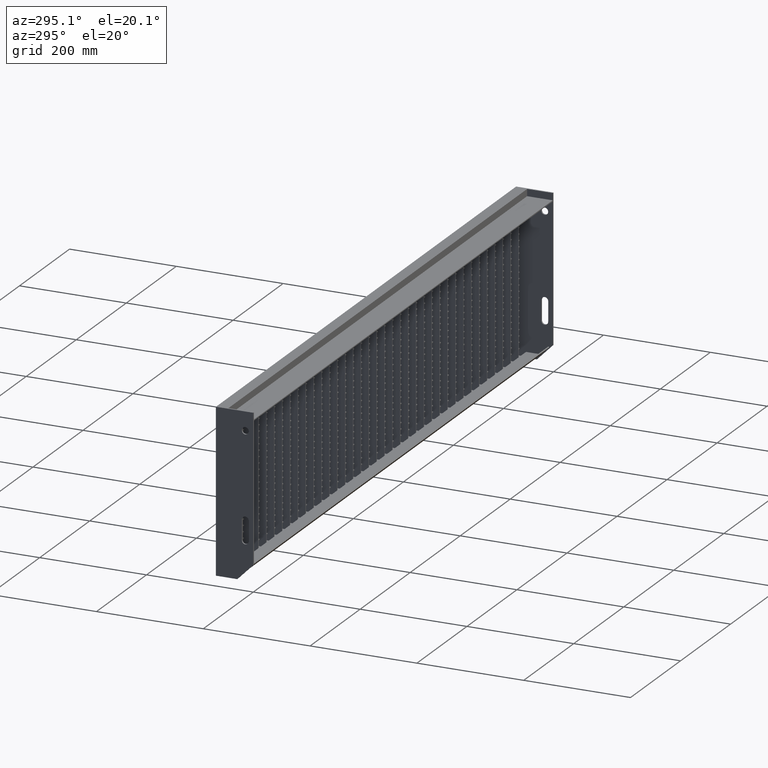
[diagram: clean part render]
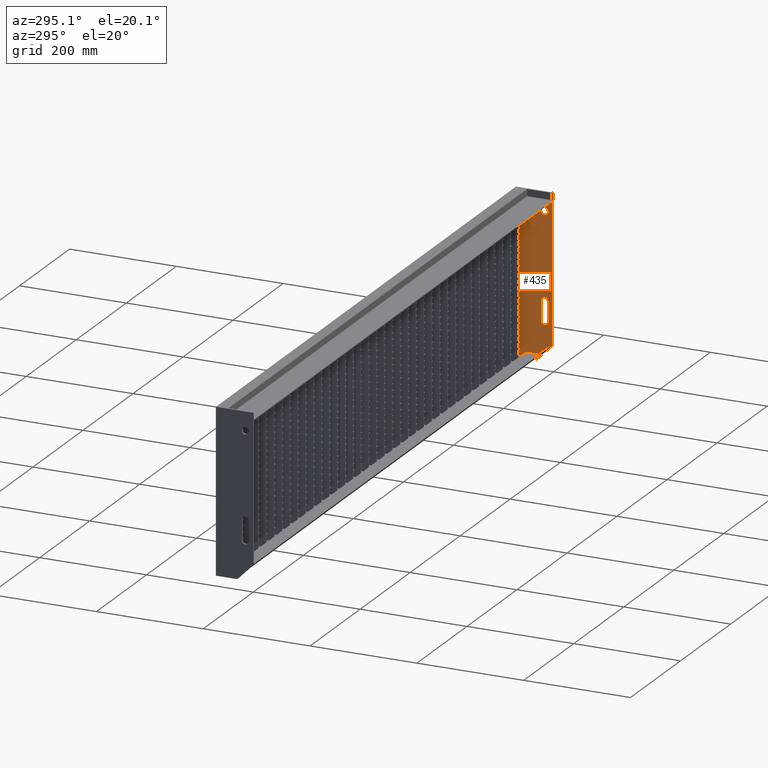
[diagram: same view with one face highlighted and labeled with its STEP entity id]
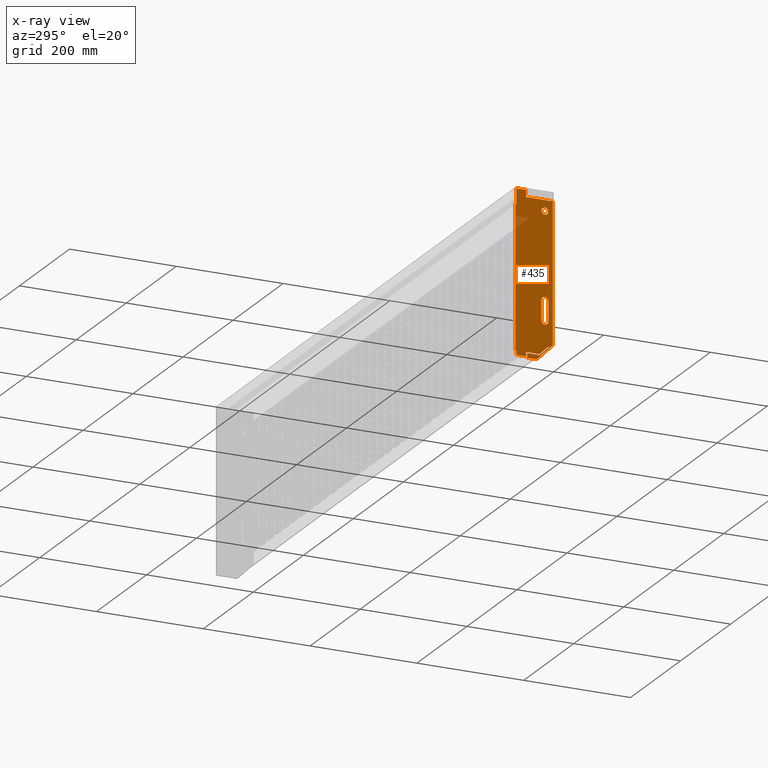
[diagram: x-ray of the same camera — body ghosted, the highlighted face saturated]
A machine part, auxiliary view. The second image highlights one B-rep face of the part: STEP entity #435.
The next image is the same camera in x-ray: the body ghosted, the highlighted face saturated — about 2% of this face is hidden behind the body in this view.
In plain terms, the highlighted planar face has unit normal (-1, 0, 0).
Its self-contained STEP definition (entity closure, byte-faithful):
#58 = CARTESIAN_POINT ( 'NONE',  ( 597.0000000000000000, 24.44974746830581200, -294.5000000000000000 ) ) ;
#150 = CARTESIAN_POINT ( 'NONE',  ( 597.0000000000000000, 21.50000000000020600, -233.4999999999998900 ) ) ;
#209 = EDGE_CURVE ( 'NONE', #35170, #35150, #3165, .T. ) ;
#391 = CARTESIAN_POINT ( 'NONE',  ( 597.0000000000000000, 15.00000000000019900, -35.00000000000000000 ) ) ;
#423 = ORIENTED_EDGE ( 'NONE', *, *, #9139, .T. ) ;
#435 = ADVANCED_FACE ( 'NONE', ( #1699, #31918, #17489 ), #25614, .T. ) ;
#538 = DIRECTION ( 'NONE',  ( 0.0000000000000000000, 0.0000000000000000000, -1.000000000000000000 ) ) ;
#611 = DIRECTION ( 'NONE',  ( 0.0000000000000000000, 0.0000000000000000000, 1.000000000000000000 ) ) ;
#665 = ORIENTED_EDGE ( 'NONE', *, *, #25657, .F. ) ;
#1404 = ORIENTED_EDGE ( 'NONE', *, *, #18287, .F. ) ;
#1419 = VERTEX_POINT ( 'NONE', #12991 ) ;
#1699 = FACE_BOUND ( 'NONE', #3606, .T. ) ;
#2015 = DIRECTION ( 'NONE',  ( 0.0000000000000000000, 0.7071067811865696700, 0.7071067811865253700 ) ) ;
#2081 = AXIS2_PLACEMENT_3D ( 'NONE', #24496, #3033, #8516 ) ;
#2127 = EDGE_CURVE ( 'NONE', #18171, #17650, #39234, .T. ) ;
#3018 = VECTOR ( 'NONE', #538, 1000.000000000000000 ) ;
#3033 = DIRECTION ( 'NONE',  ( 1.000000000000000000, 0.0000000000000000000, 0.0000000000000000000 ) ) ;
#3147 = EDGE_CURVE ( 'NONE', #30969, #23786, #28148, .T. ) ;
#3165 = CIRCLE ( 'NONE', #12286, 6.499999999999999100 ) ;
#3585 = DIRECTION ( 'NONE',  ( 1.000000000000000000, 0.0000000000000000000, 0.0000000000000000000 ) ) ;
#3606 = EDGE_LOOP ( 'NONE', ( #34183, #423, #6688, #4475, #19436 ) ) ;
#3623 = VERTEX_POINT ( 'NONE', #37431 ) ;
#3877 = DIRECTION ( 'NONE',  ( 1.000000000000000000, 0.0000000000000000000, 0.0000000000000000000 ) ) ;
#4101 = VECTOR ( 'NONE', #27274, 1000.000000000000000 ) ;
#4123 = CARTESIAN_POINT ( 'NONE',  ( 597.0000000000000000, 0.0000000000000000000, 0.0000000000000000000 ) ) ;
#4475 = ORIENTED_EDGE ( 'NONE', *, *, #6956, .T. ) ;
#5083 = ORIENTED_EDGE ( 'NONE', *, *, #22848, .F. ) ;
#5122 = ORIENTED_EDGE ( 'NONE', *, *, #37711, .F. ) ;
#5534 = VERTEX_POINT ( 'NONE', #7834 ) ;
#5562 = VERTEX_POINT ( 'NONE', #7715 ) ;
#5940 = VECTOR ( 'NONE', #611, 1000.000000000000000 ) ;
#6628 = EDGE_CURVE ( 'NONE', #32709, #5562, #32757, .T. ) ;
#6688 = ORIENTED_EDGE ( 'NONE', *, *, #37517, .T. ) ;
#6815 = VECTOR ( 'NONE', #25557, 1000.000000000000000 ) ;
#6918 = DIRECTION ( 'NONE',  ( 0.0000000000000000000, 1.000000000000000000, 0.0000000000000000000 ) ) ;
#6956 = EDGE_CURVE ( 'NONE', #17648, #26237, #22622, .T. ) ;
#6964 = LINE ( 'NONE', #33273, #4101 ) ;
#7128 = CARTESIAN_POINT ( 'NONE',  ( 597.0000000000000000, 6.650757595082542800, -279.5294372515228400 ) ) ;
#7153 = EDGE_CURVE ( 'NONE', #32040, #24685, #28875, .T. ) ;
#7180 = EDGE_CURVE ( 'NONE', #25854, #16970, #17810, .T. ) ;
#7631 = CARTESIAN_POINT ( 'NONE',  ( 597.0000000000000000, 6.650757595082542800, -279.5294372515228400 ) ) ;
#7715 = CARTESIAN_POINT ( 'NONE',  ( 597.0000000000000000, 68.00000000000000000, -30.00000000000000000 ) ) ;
#7834 = CARTESIAN_POINT ( 'NONE',  ( 597.0000000000000000, 21.50000000000021700, -196.4999999999999400 ) ) ;
#8047 = EDGE_CURVE ( 'NONE', #5534, #1419, #17755, .T. ) ;
#8082 = CARTESIAN_POINT ( 'NONE',  ( 597.0000000000000000, 68.00000000000000000, -2.000000000000001800 ) ) ;
#8177 = ORIENTED_EDGE ( 'NONE', *, *, #16386, .F. ) ;
#8368 = EDGE_CURVE ( 'NONE', #35150, #35170, #26585, .T. ) ;
#8516 = DIRECTION ( 'NONE',  ( 0.0000000000000000000, 0.0000000000000000000, -1.000000000000000000 ) ) ;
#8517 = ORIENTED_EDGE ( 'NONE', *, *, #3147, .F. ) ;
#8591 = CARTESIAN_POINT ( 'NONE',  ( 597.0000000000000000, 15.00000000000019900, -28.50000000000000400 ) ) ;
#9139 = EDGE_CURVE ( 'NONE', #1419, #3623, #20999, .T. ) ;
#9176 = DIRECTION ( 'NONE',  ( 0.0000000000000000000, 3.750753461571482800E-016, 1.000000000000000000 ) ) ;
#9543 = DIRECTION ( 'NONE',  ( 0.0000000000000000000, 0.0000000000000000000, -1.000000000000000000 ) ) ;
#9546 = CARTESIAN_POINT ( 'NONE',  ( 597.0000000000000000, 50.00000000000022700, -303.0000000000000000 ) ) ;
#9574 = VECTOR ( 'NONE', #16710, 1000.000000000000000 ) ;
#9943 = ORIENTED_EDGE ( 'NONE', *, *, #7153, .F. ) ;
#9981 = CARTESIAN_POINT ( 'NONE',  ( 597.0000000000000000, 2.601319824573162500E-016, -14.99999999999999800 ) ) ;
#10004 = CARTESIAN_POINT ( 'NONE',  ( 597.0000000000000000, 30.00000000000022700, -305.0000000000000000 ) ) ;
#10430 = AXIS2_PLACEMENT_3D ( 'NONE', #28729, #22262, #22531 ) ;
#10546 = VERTEX_POINT ( 'NONE', #16912 ) ;
#10833 = DIRECTION ( 'NONE',  ( -0.0000000000000000000, -0.0000000000000000000, 1.000000000000000000 ) ) ;
#11283 = EDGE_CURVE ( 'NONE', #15527, #32709, #18420, .T. ) ;
#11391 = CARTESIAN_POINT ( 'NONE',  ( 597.0000000000000000, 68.00000000000022700, -303.0000000000000000 ) ) ;
#11417 = ORIENTED_EDGE ( 'NONE', *, *, #6628, .F. ) ;
#11569 = CARTESIAN_POINT ( 'NONE',  ( 597.0000000000000000, 23.62132034355967400, -296.5000000000000000 ) ) ;
#11855 = CARTESIAN_POINT ( 'NONE',  ( 597.0000000000000000, 21.50000000000020300, -233.4999999999998900 ) ) ;
#12286 = AXIS2_PLACEMENT_3D ( 'NONE', #391, #3585, #24929 ) ;
#12631 = DIRECTION ( 'NONE',  ( 1.000000000000000000, 0.0000000000000000000, 0.0000000000000000000 ) ) ;
#12736 = ORIENTED_EDGE ( 'NONE', *, *, #16166, .F. ) ;
#12902 = VERTEX_POINT ( 'NONE', #11391 ) ;
#12991 = CARTESIAN_POINT ( 'NONE',  ( 597.0000000000000000, 8.500000000000183000, -196.4999999999999400 ) ) ;
#13075 = EDGE_CURVE ( 'NONE', #21680, #22401, #14474, .T. ) ;
#13146 = EDGE_CURVE ( 'NONE', #22401, #30969, #38022, .T. ) ;
#13863 = LINE ( 'NONE', #23146, #9574 ) ;
#14243 = CARTESIAN_POINT ( 'NONE',  ( 597.0000000000000000, 8.500000000000183000, -196.4999999999999400 ) ) ;
#14306 = CARTESIAN_POINT ( 'NONE',  ( 597.0000000000000000, 48.00000000000022000, -305.0000000000000000 ) ) ;
#14418 = ORIENTED_EDGE ( 'NONE', *, *, #11283, .F. ) ;
#14423 = CARTESIAN_POINT ( 'NONE',  ( 597.0000000000000000, 50.00000000000011400, -15.00000000000000000 ) ) ;
#14474 = LINE ( 'NONE', #28176, #3018 ) ;
#15434 = DIRECTION ( 'NONE',  ( 0.0000000000000000000, 1.000000000000000000, 0.0000000000000000000 ) ) ;
#15462 = CARTESIAN_POINT ( 'NONE',  ( 597.0000000000000000, 50.00000000000022700, -303.0000000000000000 ) ) ;
#15472 = CARTESIAN_POINT ( 'NONE',  ( 597.0000000000000000, 8.064971157455666200, -278.1152236891498400 ) ) ;
#15527 = VERTEX_POINT ( 'NONE', #21450 ) ;
#15790 = LINE ( 'NONE', #11855, #34055 ) ;
#15854 = CARTESIAN_POINT ( 'NONE',  ( 597.0000000000000000, 68.00000000000022700, -303.0000000000000000 ) ) ;
#16104 = DIRECTION ( 'NONE',  ( 0.0000000000000000000, 0.0000000000000000000, -1.000000000000000000 ) ) ;
#16132 = VECTOR ( 'NONE', #21784, 1000.000000000000100 ) ;
#16164 = DIRECTION ( 'NONE',  ( -0.0000000000000000000, 0.7071067811865491300, -0.7071067811865459100 ) ) ;
#16166 = EDGE_CURVE ( 'NONE', #16970, #18171, #20453, .T. ) ;
#16386 = EDGE_CURVE ( 'NONE', #37374, #25854, #36278, .T. ) ;
#16417 = CARTESIAN_POINT ( 'NONE',  ( 597.0000000000000000, 50.00000000000022700, -294.5000000000000000 ) ) ;
#16589 = LINE ( 'NONE', #9546, #33874 ) ;
#16646 = DIRECTION ( 'NONE',  ( 0.0000000000000000000, -1.000000000000000000, 0.0000000000000000000 ) ) ;
#16710 = DIRECTION ( 'NONE',  ( 0.0000000000000000000, 0.0000000000000000000, 1.000000000000000000 ) ) ;
#16912 = CARTESIAN_POINT ( 'NONE',  ( 597.0000000000000000, 30.00000000000022700, -305.0000000000000000 ) ) ;
#16970 = VERTEX_POINT ( 'NONE', #21313 ) ;
#16994 = LINE ( 'NONE', #15854, #5940 ) ;
#17346 = DIRECTION ( 'NONE',  ( 0.0000000000000000000, 0.0000000000000000000, 1.000000000000000000 ) ) ;
#17489 = FACE_OUTER_BOUND ( 'NONE', #28932, .T. ) ;
#17505 = AXIS2_PLACEMENT_3D ( 'NONE', #31453, #12631, #16104 ) ;
#17648 = VERTEX_POINT ( 'NONE', #27874 ) ;
#17650 = VERTEX_POINT ( 'NONE', #16417 ) ;
#17755 = CIRCLE ( 'NONE', #24705, 6.500000000000005300 ) ;
#17810 = LINE ( 'NONE', #7631, #36040 ) ;
#18171 = VERTEX_POINT ( 'NONE', #58 ) ;
#18287 = EDGE_CURVE ( 'NONE', #17650, #20791, #35688, .T. ) ;
#18420 = LINE ( 'NONE', #19689, #39560 ) ;
#18423 = VECTOR ( 'NONE', #9543, 1000.000000000000000 ) ;
#19436 = ORIENTED_EDGE ( 'NONE', *, *, #29977, .T. ) ;
#19472 = ORIENTED_EDGE ( 'NONE', *, *, #8368, .T. ) ;
#19676 = DIRECTION ( 'NONE',  ( 0.0000000000000000000, -1.000000000000000000, 3.469446951953606200E-017 ) ) ;
#19689 = CARTESIAN_POINT ( 'NONE',  ( 597.0000000000000000, 70.00000000000022700, 0.0000000000000000000 ) ) ;
#19933 = VECTOR ( 'NONE', #34177, 1000.000000000000000 ) ;
#20185 = ORIENTED_EDGE ( 'NONE', *, *, #13075, .F. ) ;
#20228 = DIRECTION ( 'NONE',  ( 0.0000000000000000000, 0.0000000000000000000, 1.000000000000000000 ) ) ;
#20388 = ORIENTED_EDGE ( 'NONE', *, *, #24508, .F. ) ;
#20453 = LINE ( 'NONE', #15472, #16132 ) ;
#20589 = CIRCLE ( 'NONE', #17505, 6.500000000000005300 ) ;
#20726 = VECTOR ( 'NONE', #19676, 1000.000000000000000 ) ;
#20791 = VERTEX_POINT ( 'NONE', #15462 ) ;
#20999 = LINE ( 'NONE', #14243, #29164 ) ;
#21313 = CARTESIAN_POINT ( 'NONE',  ( 597.0000000000000000, 8.064971157455666200, -278.1152236891498400 ) ) ;
#21325 = CARTESIAN_POINT ( 'NONE',  ( 597.0000000000000000, 15.00000000000019900, -41.50000000000000000 ) ) ;
#21332 = LINE ( 'NONE', #34757, #6815 ) ;
#21450 = CARTESIAN_POINT ( 'NONE',  ( 597.0000000000000000, 70.00000000000022700, -294.5000000000000000 ) ) ;
#21456 = LINE ( 'NONE', #10004, #32986 ) ;
#21680 = VERTEX_POINT ( 'NONE', #21901 ) ;
#21784 = DIRECTION ( 'NONE',  ( 0.0000000000000000000, 0.7071067811865470200, -0.7071067811865479100 ) ) ;
#21862 = ORIENTED_EDGE ( 'NONE', *, *, #7180, .F. ) ;
#21866 = CARTESIAN_POINT ( 'NONE',  ( 597.0000000000000000, 2.239058707984771800E-013, -275.0000000000001100 ) ) ;
#21901 = CARTESIAN_POINT ( 'NONE',  ( 597.0000000000000000, 50.00000000000011400, -1.999999999999997800 ) ) ;
#22066 = CARTESIAN_POINT ( 'NONE',  ( 597.0000000000000000, 24.44974746830581200, -294.5000000000000000 ) ) ;
#22262 = DIRECTION ( 'NONE',  ( 1.000000000000000000, 0.0000000000000000000, 0.0000000000000000000 ) ) ;
#22401 = VERTEX_POINT ( 'NONE', #26051 ) ;
#22531 = DIRECTION ( 'NONE',  ( 0.0000000000000000000, 0.0000000000000000000, -1.000000000000000000 ) ) ;
#22622 = CIRCLE ( 'NONE', #10430, 6.500000000000005300 ) ;
#22737 = CARTESIAN_POINT ( 'NONE',  ( 597.0000000000000000, 68.00000000000022700, -294.5000000000000000 ) ) ;
#22848 = EDGE_CURVE ( 'NONE', #23786, #10546, #21456, .T. ) ;
#22908 = VECTOR ( 'NONE', #6918, 1000.000000000000000 ) ;
#23001 = DIRECTION ( 'NONE',  ( -1.000000000000000000, 0.0000000000000000000, 0.0000000000000000000 ) ) ;
#23146 = CARTESIAN_POINT ( 'NONE',  ( 597.0000000000000000, 68.00000000000000000, -30.00000000000000000 ) ) ;
#23786 = VERTEX_POINT ( 'NONE', #21866 ) ;
#24496 = CARTESIAN_POINT ( 'NONE',  ( 597.0000000000000000, 15.00000000000019900, -35.00000000000000000 ) ) ;
#24508 = EDGE_CURVE ( 'NONE', #32661, #21680, #29659, .T. ) ;
#24667 = AXIS2_PLACEMENT_3D ( 'NONE', #4123, #23001, #17346 ) ;
#24685 = VERTEX_POINT ( 'NONE', #25435 ) ;
#24705 = AXIS2_PLACEMENT_3D ( 'NONE', #37376, #3877, #31383 ) ;
#24929 = DIRECTION ( 'NONE',  ( 0.0000000000000000000, 0.0000000000000000000, -1.000000000000000000 ) ) ;
#25435 = CARTESIAN_POINT ( 'NONE',  ( 597.0000000000000000, 48.00000000000022000, -296.5000000000000000 ) ) ;
#25557 = DIRECTION ( 'NONE',  ( -0.0000000000000000000, 1.000000000000000000, -0.0000000000000000000 ) ) ;
#25614 = PLANE ( 'NONE',  #24667 ) ;
#25657 = EDGE_CURVE ( 'NONE', #20791, #12902, #16589, .T. ) ;
#25854 = VERTEX_POINT ( 'NONE', #7128 ) ;
#26046 = ORIENTED_EDGE ( 'NONE', *, *, #26725, .F. ) ;
#26051 = CARTESIAN_POINT ( 'NONE',  ( 597.0000000000000000, 50.00000000000011400, -15.00000000000000000 ) ) ;
#26237 = VERTEX_POINT ( 'NONE', #150 ) ;
#26585 = CIRCLE ( 'NONE', #2081, 6.499999999999999100 ) ;
#26725 = EDGE_CURVE ( 'NONE', #12902, #36256, #16994, .T. ) ;
#27274 = DIRECTION ( 'NONE',  ( 0.0000000000000000000, 1.000000000000000000, 0.0000000000000000000 ) ) ;
#27479 = CARTESIAN_POINT ( 'NONE',  ( 597.0000000000000000, 70.00000000000000000, -30.00000000000000000 ) ) ;
#27874 = CARTESIAN_POINT ( 'NONE',  ( 597.0000000000000000, 15.00000000000020300, -239.9999999999998900 ) ) ;
#28049 = CARTESIAN_POINT ( 'NONE',  ( 597.0000000000000000, 2.239058707984771800E-013, -275.0000000000001100 ) ) ;
#28148 = LINE ( 'NONE', #28049, #19933 ) ;
#28176 = CARTESIAN_POINT ( 'NONE',  ( 597.0000000000000000, 50.00000000000011400, -1.999999999999997800 ) ) ;
#28729 = CARTESIAN_POINT ( 'NONE',  ( 597.0000000000000000, 15.00000000000020300, -233.4999999999998900 ) ) ;
#28875 = LINE ( 'NONE', #14306, #30290 ) ;
#28932 = EDGE_LOOP ( 'NONE', ( #8517, #30685, #20185, #20388, #39057, #11417, #14418, #37085, #26046, #665, #1404, #34064, #12736, #21862, #8177, #36434, #9943, #5122, #5083 ) ) ;
#29094 = VECTOR ( 'NONE', #31260, 1000.000000000000000 ) ;
#29164 = VECTOR ( 'NONE', #29436, 1000.000000000000000 ) ;
#29436 = DIRECTION ( 'NONE',  ( 0.0000000000000000000, 3.750753461571482800E-016, -1.000000000000000000 ) ) ;
#29659 = LINE ( 'NONE', #8082, #38769 ) ;
#29760 = EDGE_CURVE ( 'NONE', #5562, #32661, #13863, .T. ) ;
#29907 = VECTOR ( 'NONE', #16646, 1000.000000000000000 ) ;
#29977 = EDGE_CURVE ( 'NONE', #26237, #5534, #15790, .T. ) ;
#30236 = CARTESIAN_POINT ( 'NONE',  ( 597.0000000000000000, 23.62132034355967400, -296.5000000000000000 ) ) ;
#30290 = VECTOR ( 'NONE', #20228, 1000.000000000000000 ) ;
#30685 = ORIENTED_EDGE ( 'NONE', *, *, #13146, .F. ) ;
#30969 = VERTEX_POINT ( 'NONE', #9981 ) ;
#31096 = CARTESIAN_POINT ( 'NONE',  ( 597.0000000000000000, 70.00000000000000000, -30.00000000000000000 ) ) ;
#31260 = DIRECTION ( 'NONE',  ( 0.0000000000000000000, -0.7071067811865474600, 0.7071067811865476800 ) ) ;
#31383 = DIRECTION ( 'NONE',  ( 0.0000000000000000000, 0.0000000000000000000, -1.000000000000000000 ) ) ;
#31453 = CARTESIAN_POINT ( 'NONE',  ( 597.0000000000000000, 15.00000000000020300, -233.4999999999998900 ) ) ;
#31918 = FACE_BOUND ( 'NONE', #37828, .T. ) ;
#32040 = VERTEX_POINT ( 'NONE', #37894 ) ;
#32661 = VERTEX_POINT ( 'NONE', #33868 ) ;
#32709 = VERTEX_POINT ( 'NONE', #27479 ) ;
#32757 = LINE ( 'NONE', #31096, #37541 ) ;
#32986 = VECTOR ( 'NONE', #16164, 1000.000000000000100 ) ;
#33273 = CARTESIAN_POINT ( 'NONE',  ( 597.0000000000000000, 68.00000000000022700, -294.5000000000000000 ) ) ;
#33868 = CARTESIAN_POINT ( 'NONE',  ( 597.0000000000000000, 68.00000000000000000, -2.000000000000001800 ) ) ;
#33874 = VECTOR ( 'NONE', #15434, 1000.000000000000000 ) ;
#34055 = VECTOR ( 'NONE', #9176, 1000.000000000000000 ) ;
#34064 = ORIENTED_EDGE ( 'NONE', *, *, #2127, .F. ) ;
#34177 = DIRECTION ( 'NONE',  ( -0.0000000000000000000, 1.261617073437686200E-017, -1.000000000000000000 ) ) ;
#34183 = ORIENTED_EDGE ( 'NONE', *, *, #8047, .T. ) ;
#34295 = DIRECTION ( 'NONE',  ( 0.0000000000000000000, -1.000000000000000000, 0.0000000000000000000 ) ) ;
#34757 = CARTESIAN_POINT ( 'NONE',  ( 597.0000000000000000, 70.00000000000022700, -305.0000000000000000 ) ) ;
#34896 = CARTESIAN_POINT ( 'NONE',  ( 597.0000000000000000, 48.00000000000022000, -296.5000000000000000 ) ) ;
#35150 = VERTEX_POINT ( 'NONE', #8591 ) ;
#35170 = VERTEX_POINT ( 'NONE', #21325 ) ;
#35688 = LINE ( 'NONE', #36914, #18423 ) ;
#35721 = DIRECTION ( 'NONE',  ( 0.0000000000000000000, -1.000000000000000000, 2.168404344971021900E-016 ) ) ;
#36040 = VECTOR ( 'NONE', #2015, 1000.000000000000000 ) ;
#36256 = VERTEX_POINT ( 'NONE', #22737 ) ;
#36278 = LINE ( 'NONE', #11569, #29094 ) ;
#36434 = ORIENTED_EDGE ( 'NONE', *, *, #38986, .F. ) ;
#36639 = LINE ( 'NONE', #34896, #29907 ) ;
#36875 = ORIENTED_EDGE ( 'NONE', *, *, #209, .T. ) ;
#36914 = CARTESIAN_POINT ( 'NONE',  ( 597.0000000000000000, 50.00000000000022700, -294.5000000000000000 ) ) ;
#37085 = ORIENTED_EDGE ( 'NONE', *, *, #37960, .F. ) ;
#37374 = VERTEX_POINT ( 'NONE', #30236 ) ;
#37376 = CARTESIAN_POINT ( 'NONE',  ( 597.0000000000000000, 15.00000000000019900, -196.4999999999999400 ) ) ;
#37431 = CARTESIAN_POINT ( 'NONE',  ( 597.0000000000000000, 8.500000000000197200, -233.4999999999998900 ) ) ;
#37517 = EDGE_CURVE ( 'NONE', #3623, #17648, #20589, .T. ) ;
#37541 = VECTOR ( 'NONE', #34295, 1000.000000000000000 ) ;
#37711 = EDGE_CURVE ( 'NONE', #10546, #32040, #21332, .T. ) ;
#37828 = EDGE_LOOP ( 'NONE', ( #36875, #19472 ) ) ;
#37894 = CARTESIAN_POINT ( 'NONE',  ( 597.0000000000000000, 48.00000000000022000, -305.0000000000000000 ) ) ;
#37960 = EDGE_CURVE ( 'NONE', #36256, #15527, #6964, .T. ) ;
#38022 = LINE ( 'NONE', #14423, #20726 ) ;
#38769 = VECTOR ( 'NONE', #35721, 1000.000000000000000 ) ;
#38986 = EDGE_CURVE ( 'NONE', #24685, #37374, #36639, .T. ) ;
#39057 = ORIENTED_EDGE ( 'NONE', *, *, #29760, .F. ) ;
#39234 = LINE ( 'NONE', #22066, #22908 ) ;
#39560 = VECTOR ( 'NONE', #10833, 1000.000000000000000 ) ;